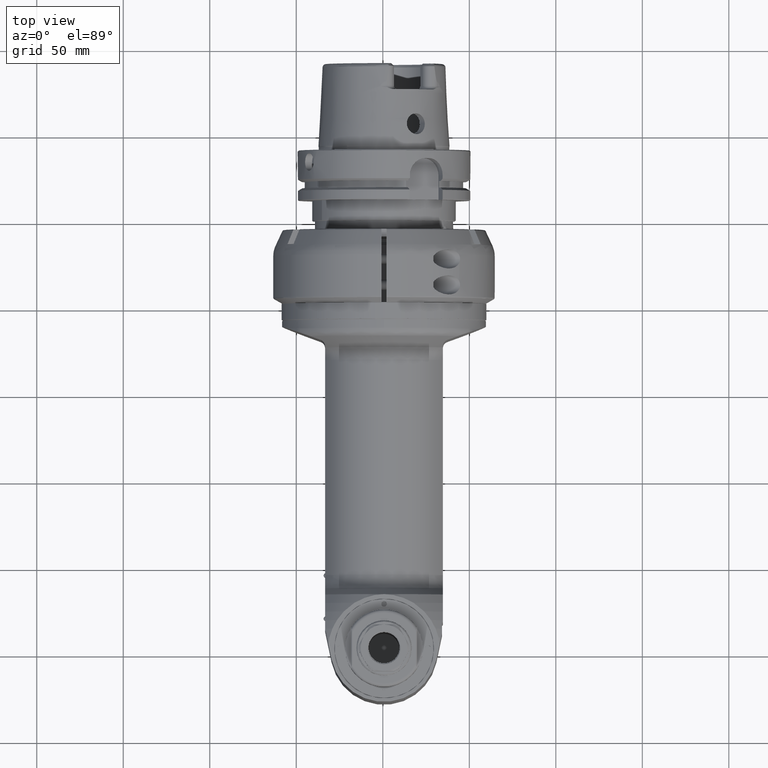
[diagram: clean part render]
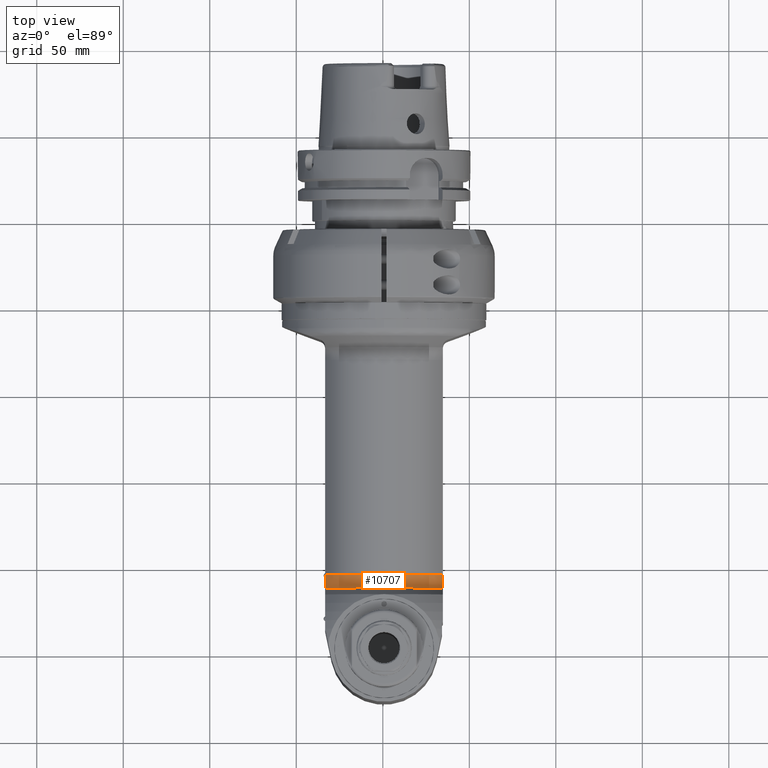
[diagram: same view with one face highlighted and labeled with its STEP entity id]
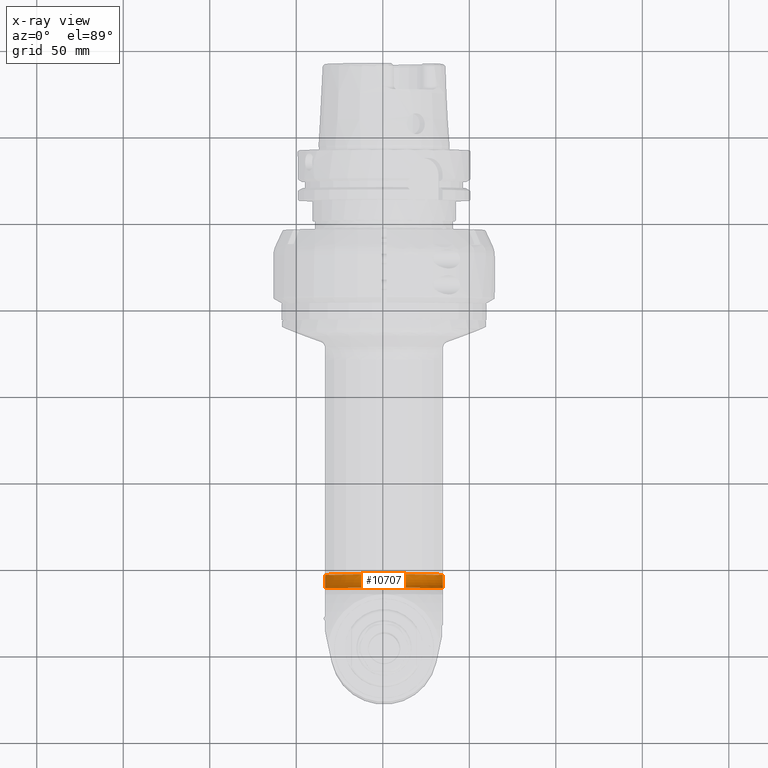
[diagram: x-ray of the same camera — body ghosted, the highlighted face saturated]
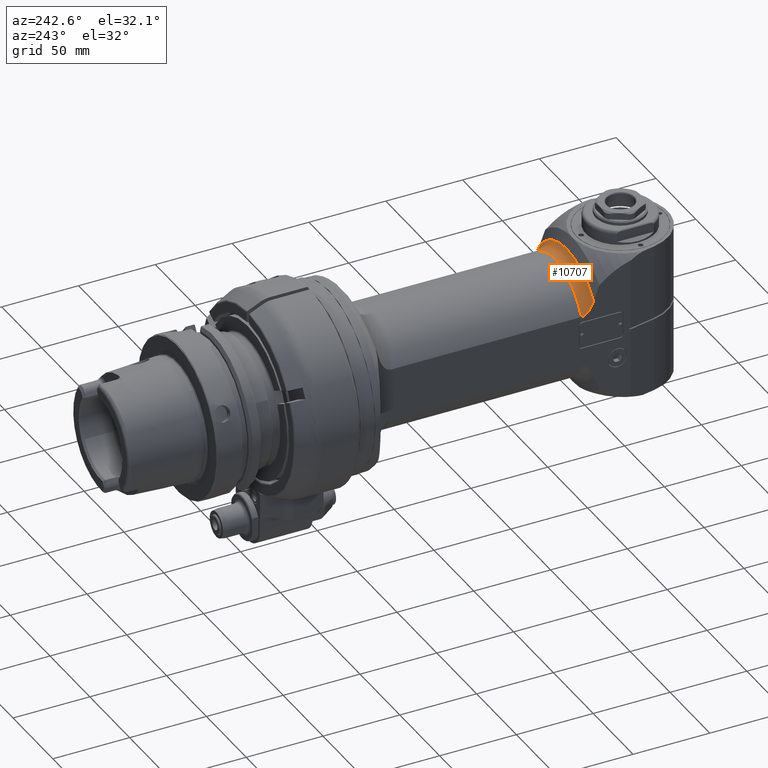
[diagram: same view with one face highlighted and labeled with its STEP entity id]
A machine part, top view. The second image highlights one B-rep face of the part: STEP entity #10707.
The next image is the same camera in x-ray: the body ghosted, the highlighted face saturated — about 0% of this face is hidden behind the body in this view.
A second angle (auxiliary view) of the same face is appended — the face is thin or edge-on in the first view.
In plain terms, the highlighted toroidal blend (fillet) surface has major radius 47 mm and minor (blend) radius 9 mm.
Its self-contained STEP definition (entity closure, byte-faithful):
#358=B_SPLINE_CURVE_WITH_KNOTS('',3,(#32755,#32756,#32757,#32758,#32759,
#32760,#32761,#32762,#32763,#32764,#32765,#32766,#32767,#32768),
 .UNSPECIFIED.,.F.,.F.,(4,2,2,2,2,2,4),(-4.53537769620374,-4.35740182880211,
-4.07702596918389,-3.86658457862338,-3.65614318806286,-3.51214519276011,
-3.38938345646085),.UNSPECIFIED.);
#360=B_SPLINE_CURVE_WITH_KNOTS('',3,(#32864,#32865,#32866,#32867,#32868,
#32869,#32870,#32871,#32872,#32873,#32874,#32875,#32876,#32877),
 .UNSPECIFIED.,.F.,.F.,(4,2,2,2,2,2,4),(-3.38938345646085,-3.26662172016158,
-3.12262372485883,-2.91218233429832,-2.7017409437378,-2.42136508411959,
-2.24338921671169),.UNSPECIFIED.);
#593=TOROIDAL_SURFACE('',#11808,47.,9.);
#1095=CIRCLE('',#11806,42.5);
#1097=CIRCLE('',#11809,38.);
#1721=FACE_OUTER_BOUND('',#2411,.T.);
#2411=EDGE_LOOP('',(#9253,#9254,#9255,#9256));
#4854=VERTEX_POINT('',#32752);
#4855=VERTEX_POINT('',#32754);
#4877=VERTEX_POINT('',#32859);
#4878=VERTEX_POINT('',#32863);
#6278=EDGE_CURVE('',#4855,#4854,#358,.T.);
#6302=EDGE_CURVE('',#4878,#4877,#360,.T.);
#6437=EDGE_CURVE('',#4877,#4855,#1095,.T.);
#6439=EDGE_CURVE('',#4854,#4878,#1097,.T.);
#9253=ORIENTED_EDGE('',*,*,#6437,.T.);
#9254=ORIENTED_EDGE('',*,*,#6278,.T.);
#9255=ORIENTED_EDGE('',*,*,#6439,.T.);
#9256=ORIENTED_EDGE('',*,*,#6302,.T.);
#10707=ADVANCED_FACE('',(#1721),#593,.F.);
#11806=AXIS2_PLACEMENT_3D('',#33343,#14420,#14421);
#11808=AXIS2_PLACEMENT_3D('',#33345,#14424,#14425);
#11809=AXIS2_PLACEMENT_3D('',#33346,#14426,#14427);
#14420=DIRECTION('center_axis',(-1.,0.,0.));
#14421=DIRECTION('ref_axis',(0.,-1.,0.));
#14424=DIRECTION('center_axis',(1.,0.,0.));
#14425=DIRECTION('ref_axis',(0.,0.,-1.));
#14426=DIRECTION('center_axis',(1.,0.,0.));
#14427=DIRECTION('ref_axis',(0.,-0.44659375653888,0.894736842105259));
#32752=CARTESIAN_POINT('',(235.2122440389,-16.97056274848,34.));
#32754=CARTESIAN_POINT('',(243.006472673,-25.5,34.));
#32755=CARTESIAN_POINT('Ctrl Pts',(243.006472672964,-25.5000000000124,34.));
#32756=CARTESIAN_POINT('Ctrl Pts',(242.801163143501,-24.9073224394957,34.));
#32757=CARTESIAN_POINT('Ctrl Pts',(242.563063857014,-24.3019762332053,34.));
#32758=CARTESIAN_POINT('Ctrl Pts',(241.879221421984,-22.775617262053,34.));
#32759=CARTESIAN_POINT('Ctrl Pts',(241.390853415105,-21.8740827520354,34.));
#32760=CARTESIAN_POINT('Ctrl Pts',(240.499302079956,-20.5022881748303,34.));
#32761=CARTESIAN_POINT('Ctrl Pts',(240.041991813742,-19.8818483557007,34.));
#32762=CARTESIAN_POINT('Ctrl Pts',(239.018125943999,-18.7484497607113,34.));
#32763=CARTESIAN_POINT('Ctrl Pts',(238.450410072228,-18.236539663176,34.));
#32764=CARTESIAN_POINT('Ctrl Pts',(237.466115327277,-17.5830700752859,34.));
#32765=CARTESIAN_POINT('Ctrl Pts',(236.952877761955,-17.3216241650835,34.));
#32766=CARTESIAN_POINT('Ctrl Pts',(236.105867080769,-17.0509805712282,34.));
#32767=CARTESIAN_POINT('Ctrl Pts',(235.621449826564,-16.9705627484771,34.));
#32768=CARTESIAN_POINT('Ctrl Pts',(235.2122440389,-16.9705627484771,34.));
#32859=CARTESIAN_POINT('',(243.006472673,-25.50000000007,-34.00000000001));
#32863=CARTESIAN_POINT('',(235.2122440389,-16.97056274848,-34.));
#32864=CARTESIAN_POINT('Ctrl Pts',(235.2122440389,-16.9705627484771,-34.));
#32865=CARTESIAN_POINT('Ctrl Pts',(235.621449826564,-16.9705627484771,-34.));
#32866=CARTESIAN_POINT('Ctrl Pts',(236.105867080769,-17.0509805712282,-34.));
#32867=CARTESIAN_POINT('Ctrl Pts',(236.952877761955,-17.3216241650835,-34.));
#32868=CARTESIAN_POINT('Ctrl Pts',(237.466115327277,-17.5830700752859,-34.));
#32869=CARTESIAN_POINT('Ctrl Pts',(238.450410072228,-18.236539663176,-34.));
#32870=CARTESIAN_POINT('Ctrl Pts',(239.018125943999,-18.7484497607113,-34.));
#32871=CARTESIAN_POINT('Ctrl Pts',(240.041991813742,-19.8818483557008,-34.));
#32872=CARTESIAN_POINT('Ctrl Pts',(240.499302079956,-20.5022881748303,-34.));
#32873=CARTESIAN_POINT('Ctrl Pts',(241.390853415105,-21.8740827520354,-34.));
#32874=CARTESIAN_POINT('Ctrl Pts',(241.879221421984,-22.775617262053,-34.));
#32875=CARTESIAN_POINT('Ctrl Pts',(242.563063857023,-24.3019762332261,-34.));
#32876=CARTESIAN_POINT('Ctrl Pts',(242.801163143517,-24.9073224395383,-34.));
#32877=CARTESIAN_POINT('Ctrl Pts',(243.006472672986,-25.5000000000749,-34.));
#33343=CARTESIAN_POINT('Origin',(243.006472673,0.,0.));
#33345=CARTESIAN_POINT('Origin',(235.2122440389,0.,0.));
#33346=CARTESIAN_POINT('Origin',(235.2122440389,0.,0.));